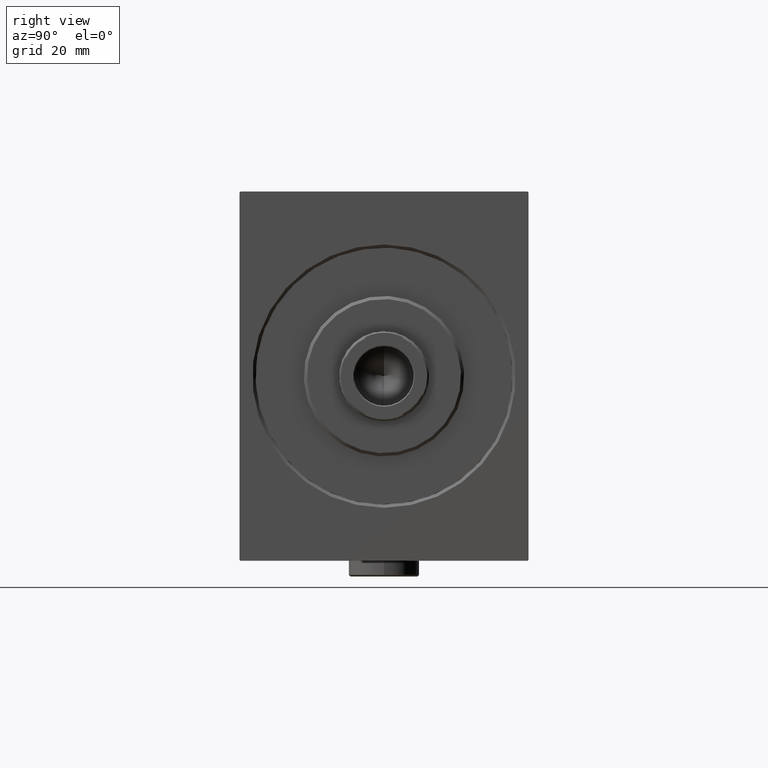
[diagram: clean part render]
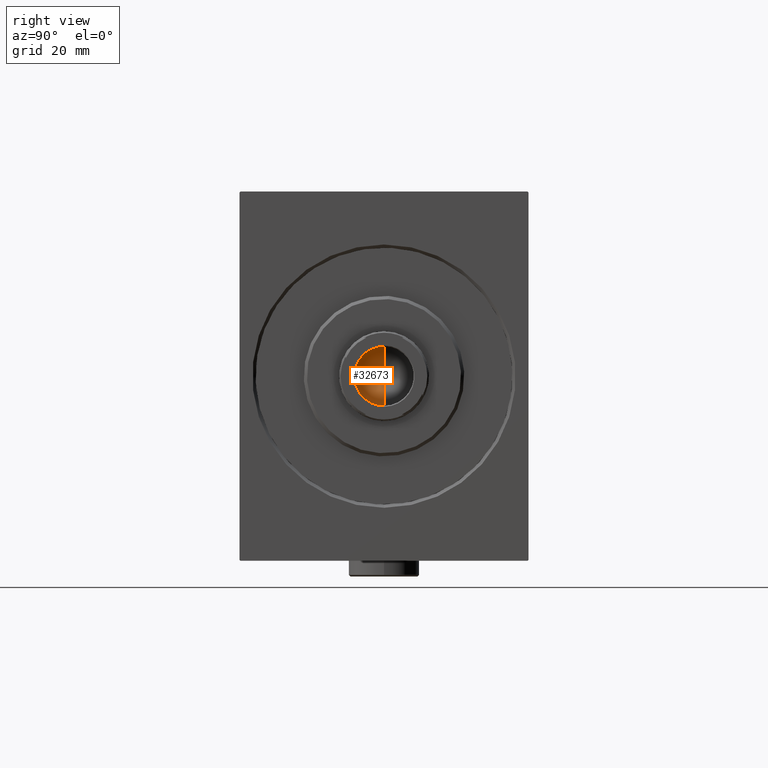
[diagram: same view with one face highlighted and labeled with its STEP entity id]
A machine part, right view. The second image highlights one B-rep face of the part: STEP entity #32673.
In plain terms, the highlighted conical surface has half-angle 59 deg.
Its self-contained STEP definition (entity closure, byte-faithful):
#1671 = AXIS2_PLACEMENT_3D ( 'NONE', #3743, #21015, #17202 ) ;
#2444 = DIRECTION ( 'NONE',  ( -0.000000000000000000, -0.000000000000000000, 1.000000000000000000 ) ) ;
#3743 = CARTESIAN_POINT ( 'NONE',  ( 0.000000000000000000, 0.000000000000000000, 129.0000000000000284 ) ) ;
#5396 = CARTESIAN_POINT ( 'NONE',  ( -9.249999999999994671, 1.132798289211300909E-15, 129.0000000000000284 ) ) ;
#6019 = CARTESIAN_POINT ( 'NONE',  ( 0.000000000000000000, 0.000000000000000000, 129.0000000000000284 ) ) ;
#6668 = FACE_OUTER_BOUND ( 'NONE', #38421, .T. ) ;
#11309 = EDGE_CURVE ( 'NONE', #26556, #41329, #41739, .T. ) ;
#11970 = AXIS2_PLACEMENT_3D ( 'NONE', #6019, #2444, #42856 ) ;
#14971 = ORIENTED_EDGE ( 'NONE', *, *, #43179, .T. ) ;
#17202 = DIRECTION ( 'NONE',  ( 1.000000000000000000, 0.000000000000000000, 0.000000000000000000 ) ) ;
#21004 = CONICAL_SURFACE ( 'NONE', #1671, 9.249999999999994671, 1.029744258676653645 ) ;
#21015 = DIRECTION ( 'NONE',  ( -0.000000000000000000, -0.000000000000000000, 1.000000000000000000 ) ) ;
#22837 = CARTESIAN_POINT ( 'NONE',  ( 9.249999999999994671, 0.000000000000000000, 129.0000000000000284 ) ) ;
#26556 = VERTEX_POINT ( 'NONE', #28655 ) ;
#28524 = LINE ( 'NONE', #5396, #38932 ) ;
#28655 = CARTESIAN_POINT ( 'NONE',  ( -7.691244471156305908E-15, 0.000000000000000000, 123.4420392739950927 ) ) ;
#29914 = CIRCLE ( 'NONE', #11970, 9.249999999999994671 ) ;
#30468 = VERTEX_POINT ( 'NONE', #38301 ) ;
#30903 = CARTESIAN_POINT ( 'NONE',  ( 9.249999999999994671, 0.000000000000000000, 129.0000000000000284 ) ) ;
#32107 = EDGE_CURVE ( 'NONE', #26556, #30468, #28524, .T. ) ;
#32673 = ADVANCED_FACE ( 'NONE', ( #6668 ), #21004, .F. ) ;
#32770 = DIRECTION ( 'NONE',  ( -0.8571673007021118895, 1.049727191138618079E-16, 0.5150380749100549327 ) ) ;
#38220 = VECTOR ( 'NONE', #39468, 1000.000000000000000 ) ;
#38301 = CARTESIAN_POINT ( 'NONE',  ( -9.249999999999994671, 1.132798289211300909E-15, 129.0000000000000284 ) ) ;
#38421 = EDGE_LOOP ( 'NONE', ( #39013, #38572, #14971 ) ) ;
#38572 = ORIENTED_EDGE ( 'NONE', *, *, #32107, .T. ) ;
#38932 = VECTOR ( 'NONE', #32770, 1000.000000000000000 ) ;
#39013 = ORIENTED_EDGE ( 'NONE', *, *, #11309, .F. ) ;
#39468 = DIRECTION ( 'NONE',  ( 0.8571673007021118895, 0.000000000000000000, 0.5150380749100549327 ) ) ;
#41329 = VERTEX_POINT ( 'NONE', #30903 ) ;
#41739 = LINE ( 'NONE', #22837, #38220 ) ;
#42856 = DIRECTION ( 'NONE',  ( 1.000000000000000000, 0.000000000000000000, 0.000000000000000000 ) ) ;
#43179 = EDGE_CURVE ( 'NONE', #30468, #41329, #29914, .T. ) ;